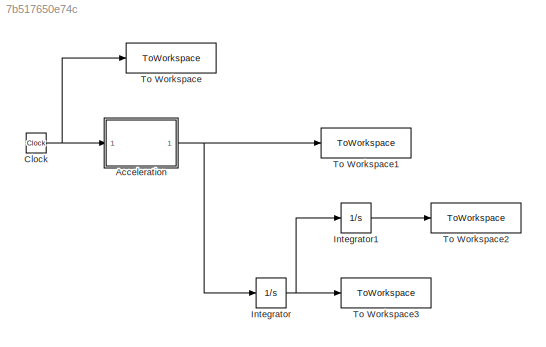
MODEL slx_7b517650e74c
KIND model
CONFIG AbsTol = auto
CONFIG EnableMultiTasking = off
CONFIG FixedStep = auto
CONFIG MaxStep = auto
CONFIG MinStep = auto
CONFIG RelTol = 1e-3
CONFIG SampleTimeConstraint = Unconstrained
CONFIG SolverName = VariableStepAuto
CONFIG StartTime = 0.0
CONFIG StopTime = 12
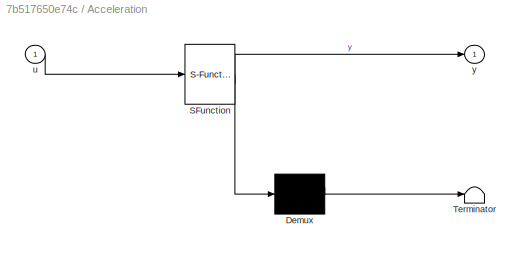
BLOCK [SubSystem] Acceleration
  ErrorFcn = Stateflow.Translate.translate
  PermitHierarchicalResolution = ExplicitOnly
  SFBlockType = MATLAB Function
  TreatAsAtomicUnit = on
BLOCK [Demux] Acceleration/ Demux 
  Outputs = 1
BLOCK [S-Function] Acceleration/ SFunction 
  EnableBusSupport = on
  FunctionName = sf_sfun
  PortCounts = [1 2]
  SFcnIsStateOwnerBlock = off
  SFunctionDeploymentMode = off
  Tag = Stateflow S-Function 2
BLOCK [Terminator] Acceleration/ Terminator 
BLOCK [Inport] Acceleration/u
BLOCK [Outport] Acceleration/y
BLOCK [Clock] Clock
  Decimation = 12
BLOCK [Integrator] Integrator
BLOCK [Integrator] Integrator1
BLOCK [ToWorkspace] To Workspace
  FixptAsFi = on
  MaxDataPoints = inf
  SampleTime = 0.01
  VariableName = controlinput
BLOCK [ToWorkspace] To Workspace1
  FixptAsFi = on
  MaxDataPoints = inf
  SampleTime = 0.01
  VariableName = acceleration
BLOCK [ToWorkspace] To Workspace2
  FixptAsFi = on
  MaxDataPoints = inf
  SampleTime = 0.01
  VariableName = position
BLOCK [ToWorkspace] To Workspace3
  FixptAsFi = on
  MaxDataPoints = inf
  SampleTime = 0.01
  VariableName = velocity
NET Acceleration:1 -> Integrator:1, To Workspace1:1
NET Clock:1 -> Acceleration:1, To Workspace:1
LINE Integrator1:1 -> To Workspace2:1
NET Integrator:1 -> Integrator1:1, To Workspace3:1
note: NET lines group one-source signal fan-out (src -> all destinations, sorted); 1:1 wires keep LINE
CHART Acceleration states=1 transitions=1
  STATE_LABEL 'eML_blk_kernel()'
  STATE_LABEL 'SCRIPT:\nfunction y = fcn(u)\n    x = zeros(size(u)); \n    if all(u >= 0 & u <= 4)\n        x(u >= 0 & u <= 4) = 2.5 * u(u >= 0 & u <= 4) - 10;\n    elseif all(u > 4 & u < 7)\n        x(u > 4 & u < 7) = 0;\n    elseif all(u >= 7 & u <= 12)\n        x(u >= 7 & u <= 12) = 2 * u(u >= 7 & u <= 12) - 14;\n    end\n    y = x;\nend'
CHART  states=0 transitions=0
